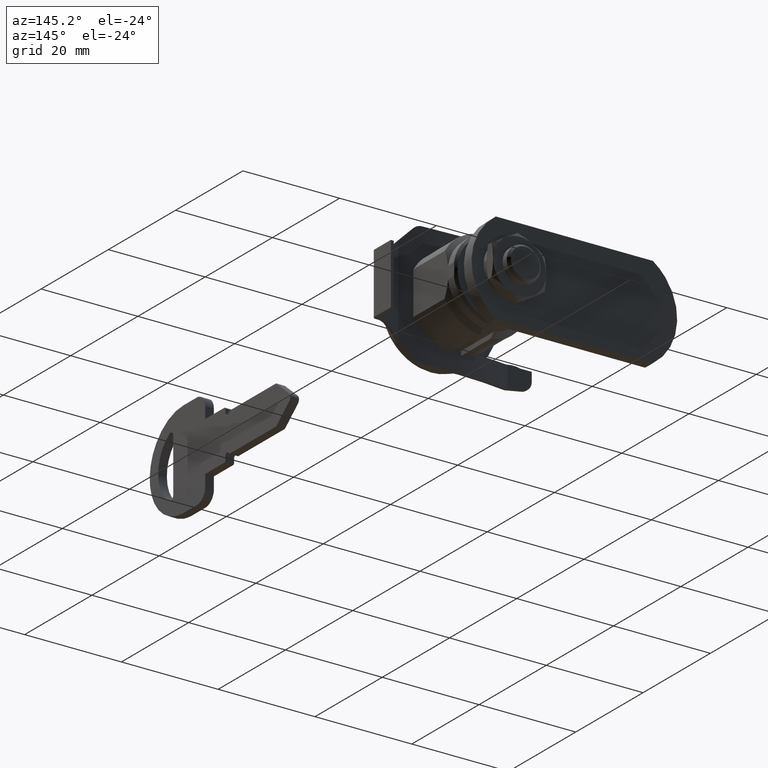
[diagram: clean part render]
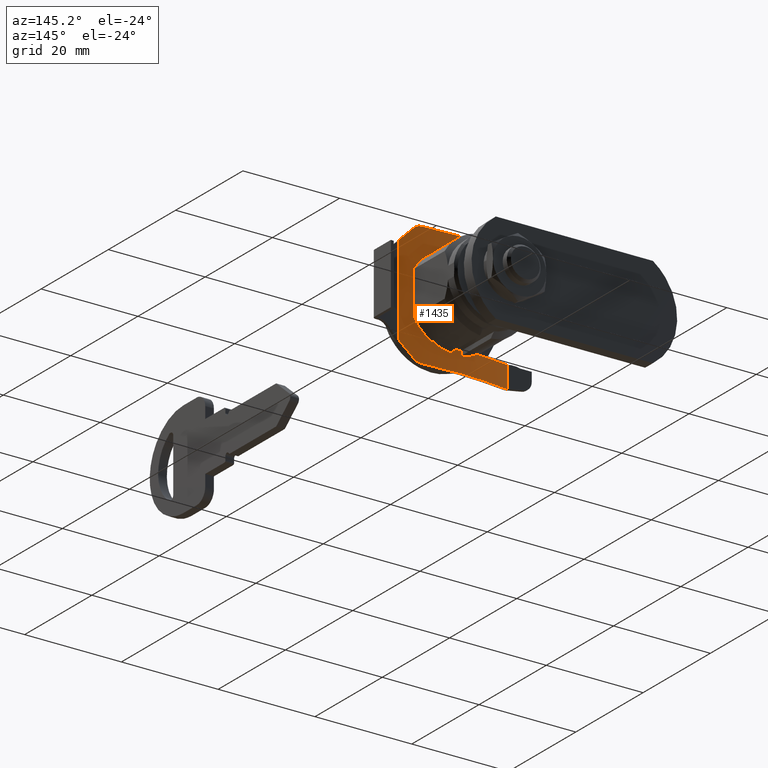
[diagram: same view with one face highlighted and labeled with its STEP entity id]
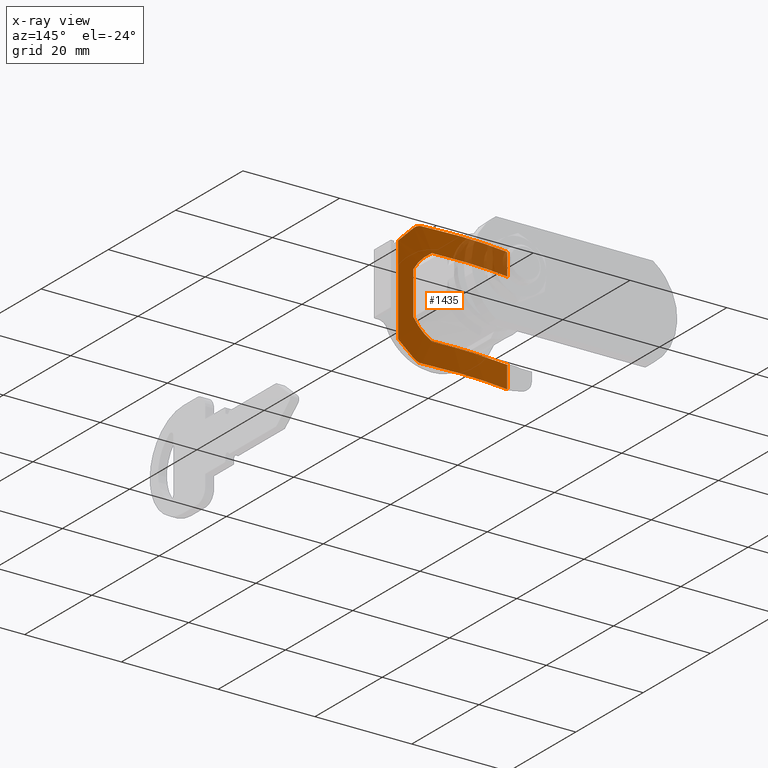
[diagram: x-ray of the same camera — body ghosted, the highlighted face saturated]
A machine part, auxiliary view. The second image highlights one B-rep face of the part: STEP entity #1435.
The next image is the same camera in x-ray: the body ghosted, the highlighted face saturated — about 18% of this face is hidden behind the body in this view.
In plain terms, the highlighted face is a freeform B-spline surface patch.
Its self-contained STEP definition (entity closure, byte-faithful):
#179=CARTESIAN_POINT('',(7.301255999999830,11.272893745618861,-12.701881436943300));
#180=VERTEX_POINT('',#179);
#186=CARTESIAN_POINT('',(7.344565675668210,11.0,-12.750000000000000));
#187=VERTEX_POINT('',#186);
#188=CARTESIAN_POINT('',(7.301255999999830,11.272893745618861,-12.701881436943300));
#189=CARTESIAN_POINT('',(7.323176158985340,11.136488980673015,-12.725933293714112));
#190=CARTESIAN_POINT('',(7.344565675668210,11.0,-12.750000000000000));
#198=(BOUNDED_CURVE()B_SPLINE_CURVE(2,(#188,#189,#190),.UNSPECIFIED.,.F.,.U.)CURVE()GEOMETRIC_REPRESENTATION_ITEM()QUASI_UNIFORM_CURVE()RATIONAL_B_SPLINE_CURVE((1.0,0.999998109511594,1.0))REPRESENTATION_ITEM(''));
#199=EDGE_CURVE('',#180,#187,#198,.T.);
#229=CARTESIAN_POINT('',(7.301255999999830,11.272893745618861,12.701881436943181));
#230=VERTEX_POINT('',#229);
#259=CARTESIAN_POINT('',(7.344565675668210,11.0,12.750000000000000));
#260=VERTEX_POINT('',#259);
#266=CARTESIAN_POINT('',(7.344565675668210,11.0,12.750000000000000));
#267=CARTESIAN_POINT('',(7.323176158985312,11.136488980673247,12.725933293714071));
#268=CARTESIAN_POINT('',(7.301255999999830,11.272893745618861,12.701881436943181));
#276=(BOUNDED_CURVE()B_SPLINE_CURVE(2,(#266,#267,#268),.UNSPECIFIED.,.F.,.U.)CURVE()GEOMETRIC_REPRESENTATION_ITEM()QUASI_UNIFORM_CURVE()RATIONAL_B_SPLINE_CURVE((1.0,0.999998109481175,1.0))REPRESENTATION_ITEM(''));
#277=EDGE_CURVE('',#260,#230,#276,.T.);
#296=CARTESIAN_POINT('',(8.039140463936290,-4.796873982084749,8.199999999999900));
#297=VERTEX_POINT('',#296);
#305=CARTESIAN_POINT('',(7.702949576500930,-8.400000000000000,4.437341546466749));
#306=VERTEX_POINT('',#305);
#307=CARTESIAN_POINT('',(8.039140463936290,-4.796873982084749,8.199999999999900));
#308=CARTESIAN_POINT('',(8.013255283921774,-5.179397853697526,7.976229413747991));
#309=CARTESIAN_POINT('',(7.985640444689947,-5.541703582096543,7.728544026565338));
#310=CARTESIAN_POINT('',(7.928630019843143,-6.227656611083003,7.187291875025985));
#311=CARTESIAN_POINT('',(7.899228909398044,-6.551298576525056,6.893719313692565));
#312=CARTESIAN_POINT('',(7.862386676940164,-6.931351056121496,6.497570890357855));
#313=CARTESIAN_POINT('',(7.855013836556886,-7.006130965653299,6.416875396990306));
#314=CARTESIAN_POINT('',(7.840286035518671,-7.153198264444018,6.252512739526453));
#315=CARTESIAN_POINT('',(7.832919993656250,-7.225592326919891,6.168715899497830));
#316=CARTESIAN_POINT('',(7.810975748177276,-7.438144185965483,5.913795089706082));
#317=CARTESIAN_POINT('',(7.796579147326940,-7.573427554383074,5.739488402230764));
#318=CARTESIAN_POINT('',(7.754391098766741,-7.960288604921142,5.203646172606618));
#319=CARTESIAN_POINT('',(7.727599121490428,-8.192971240079897,4.829252235585019));
#320=CARTESIAN_POINT('',(7.702949576500930,-8.400000000000000,4.437341546466749));
#321=B_SPLINE_CURVE_WITH_KNOTS('',3,(#307,#308,#309,#310,#311,#312,#313,#314,#315,#316,#317,#318,#319,#320),.UNSPECIFIED.,.F.,.U.,(4,2,2,2,2,2,4),(0.0,0.250000000000000,0.500000000000000,0.562500000000000,0.625000000000000,0.750000000000000,1.0),.UNSPECIFIED.);
#322=EDGE_CURVE('',#297,#306,#321,.T.);
#371=CARTESIAN_POINT('',(7.344565658611550,11.000000108840499,8.199999999999871));
#372=VERTEX_POINT('',#371);
#378=CARTESIAN_POINT('',(8.039140463936290,-4.796873982084749,8.199999999999900));
#379=CARTESIAN_POINT('',(8.576254774396885,3.140449436984798,8.199999999999871));
#380=CARTESIAN_POINT('',(7.344565658611550,11.000000108840499,8.199999999999871));
#388=(BOUNDED_CURVE()B_SPLINE_CURVE(2,(#378,#379,#380),.UNSPECIFIED.,.F.,.U.)CURVE()GEOMETRIC_REPRESENTATION_ITEM()QUASI_UNIFORM_CURVE()RATIONAL_B_SPLINE_CURVE((1.0,0.993789503322832,1.0))REPRESENTATION_ITEM(''));
#389=EDGE_CURVE('',#297,#372,#388,.T.);
#440=CARTESIAN_POINT('',(7.301255999999830,11.272893745618861,8.141587308521260));
#441=VERTEX_POINT('',#440);
#455=CARTESIAN_POINT('',(7.344565658611550,11.000000108840499,8.199999999999871));
#456=CARTESIAN_POINT('',(7.330370039421359,11.090583996377250,8.178572088309840));
#457=CARTESIAN_POINT('',(7.315935024583466,11.181549111700470,8.159102717105771));
#458=CARTESIAN_POINT('',(7.301255999999830,11.272893745618861,8.141587308521260));
#459=QUASI_UNIFORM_CURVE('',3,(#455,#456,#457,#458),.UNSPECIFIED.,.F.,.U.);
#460=EDGE_CURVE('',#372,#441,#459,.T.);
#491=CARTESIAN_POINT('',(7.344565675668309,11.0,-8.200000000000221));
#492=VERTEX_POINT('',#491);
#498=CARTESIAN_POINT('',(7.301255999999830,11.272893745618861,-8.141588308521460));
#499=VERTEX_POINT('',#498);
#500=CARTESIAN_POINT('',(7.301255999999830,11.272893745618861,-8.141588308521460));
#501=CARTESIAN_POINT('',(7.315935018216027,11.181549151323850,-8.159103709508038));
#502=CARTESIAN_POINT('',(7.330370026900894,11.090584075276960,-8.178573071423347));
#503=CARTESIAN_POINT('',(7.344565675668309,11.0,-8.200000000000221));
#504=QUASI_UNIFORM_CURVE('',3,(#500,#501,#502,#503),.UNSPECIFIED.,.F.,.U.);
#505=EDGE_CURVE('',#499,#492,#504,.T.);
#565=CARTESIAN_POINT('',(8.039140463936219,-4.796873982084200,-8.200000000000211));
#566=VERTEX_POINT('',#565);
#572=CARTESIAN_POINT('',(7.344565675668309,11.0,-8.200000000000221));
#573=CARTESIAN_POINT('',(8.576254770631190,3.140449381337320,-8.200000000000211));
#574=CARTESIAN_POINT('',(8.039140463936208,-4.796873982084180,-8.200000000000211));
#582=(BOUNDED_CURVE()B_SPLINE_CURVE(2,(#572,#573,#574),.UNSPECIFIED.,.F.,.U.)CURVE()GEOMETRIC_REPRESENTATION_ITEM()QUASI_UNIFORM_CURVE()RATIONAL_B_SPLINE_CURVE((1.0,0.993789503409106,1.0))REPRESENTATION_ITEM(''));
#583=EDGE_CURVE('',#492,#566,#582,.T.);
#603=CARTESIAN_POINT('',(7.702949576500930,-8.400000000000000,-4.437341546466755));
#604=VERTEX_POINT('',#603);
#612=CARTESIAN_POINT('',(7.702949576500930,-8.400000000000000,-4.437341546466755));
#613=CARTESIAN_POINT('',(7.727599746036079,-8.192965994592059,-4.829262165426425));
#614=CARTESIAN_POINT('',(7.754283698164585,-7.961164258051011,-5.201996526745510));
#615=CARTESIAN_POINT('',(7.810044117350993,-7.450062679325042,-5.910792694898833));
#616=CARTESIAN_POINT('',(7.839125939055289,-7.170756706521733,-6.246849361003409));
#617=CARTESIAN_POINT('',(7.875962939142347,-6.791425746651184,-6.643688075566392));
#618=CARTESIAN_POINT('',(7.883354471328707,-6.714042727227972,-6.721888919530215));
#619=CARTESIAN_POINT('',(7.898159614617551,-6.556201915031673,-6.875927343921032));
#620=CARTESIAN_POINT('',(7.905584434880217,-6.475619225519457,-6.951877071567860));
#621=CARTESIAN_POINT('',(7.927764826630832,-6.230146907077186,-7.175250950640629));
#622=CARTESIAN_POINT('',(7.942398006783501,-6.061869392534364,-7.317941177068883));
#623=CARTESIAN_POINT('',(7.985527508630429,-5.543317466428631,-7.727595090267617));
#624=CARTESIAN_POINT('',(8.013255718524491,-5.179391431260055,-7.976233170775251));
#625=CARTESIAN_POINT('',(8.039140463936230,-4.796873982084190,-8.200000000000232));
#626=B_SPLINE_CURVE_WITH_KNOTS('',3,(#612,#613,#614,#615,#616,#617,#618,#619,#620,#621,#622,#623,#624,#625),.UNSPECIFIED.,.F.,.U.,(4,2,2,2,2,2,4),(0.0,0.249999999999999,0.499999999999999,0.562499999999999,0.624999999999999,0.749999999999999,1.0),.UNSPECIFIED.);
#627=EDGE_CURVE('',#604,#566,#626,.T.);
#661=CARTESIAN_POINT('',(7.702949576500930,-8.400000000000000,-4.437341546466755));
#662=CARTESIAN_POINT('',(7.702949576500930,-8.400000000000000,4.437341546466749));
#663=QUASI_UNIFORM_CURVE('',1,(#661,#662),.UNSPECIFIED.,.F.,.U.);
#664=EDGE_CURVE('',#604,#306,#663,.T.);
#801=CARTESIAN_POINT('',(7.716454620868791,-8.285785304922289,-12.164213695077800));
#802=VERTEX_POINT('',#801);
#803=CARTESIAN_POINT('',(7.868179781815730,-6.871571875253689,-12.750000000000000));
#804=VERTEX_POINT('',#803);
#805=CARTESIAN_POINT('',(7.716454620868791,-8.285785304922289,-12.164213695077800));
#806=CARTESIAN_POINT('',(7.727428276862145,-8.192330453439759,-12.257668529021190));
#807=CARTESIAN_POINT('',(7.739101772864466,-8.091318640819370,-12.340336695870571));
#808=CARTESIAN_POINT('',(7.757461609653921,-7.928951737456185,-12.448877886015870));
#809=CARTESIAN_POINT('',(7.763724624434820,-7.873007668241627,-12.482462034585531));
#810=CARTESIAN_POINT('',(7.776519212119526,-7.757396324527613,-12.544328117660241));
#811=CARTESIAN_POINT('',(7.783073307234176,-7.697513782413822,-12.572664813440371));
#812=CARTESIAN_POINT('',(7.802693255234839,-7.516042482980576,-12.647842422437630));
#813=CARTESIAN_POINT('',(7.815838087316661,-7.391555082354557,-12.685625538908120));
#814=CARTESIAN_POINT('',(7.835564618860041,-7.199610648962312,-12.723992845371740));
#815=CARTESIAN_POINT('',(7.842154087613452,-7.134636145419853,-12.733720406596740));
#816=CARTESIAN_POINT('',(7.855278571841571,-7.003379522886156,-12.746741396829339));
#817=CARTESIAN_POINT('',(7.861766865188786,-6.937567704791070,-12.750000000000000));
#818=CARTESIAN_POINT('',(7.868179781815740,-6.871571875253689,-12.750000000000000));
#819=B_SPLINE_CURVE_WITH_KNOTS('',3,(#805,#806,#807,#808,#809,#810,#811,#812,#813,#814,#815,#816,#817,#818),.UNSPECIFIED.,.F.,.U.,(4,2,2,2,2,2,4),(0.0,0.250000000000002,0.375000000000003,0.500000000000003,0.750000000000002,0.875000000000001,1.0),.UNSPECIFIED.);
#820=EDGE_CURVE('',#802,#804,#819,.T.);
#870=CARTESIAN_POINT('',(7.868179781815730,-6.871571875253689,12.750000000000000));
#871=VERTEX_POINT('',#870);
#872=CARTESIAN_POINT('',(7.716454620868801,-8.285785304922239,12.164213695077720));
#873=VERTEX_POINT('',#872);
#874=CARTESIAN_POINT('',(7.868179781815730,-6.871571875253689,12.750000000000000));
#875=CARTESIAN_POINT('',(7.855353522289426,-7.003567921131173,12.750000000000000));
#876=CARTESIAN_POINT('',(7.842371181426592,-7.133333848835184,12.737061217926790));
#877=CARTESIAN_POINT('',(7.822702942289331,-7.324781047517838,12.699059863068889));
#878=CARTESIAN_POINT('',(7.816114738006598,-7.388059250142784,12.683270808413550));
#879=CARTESIAN_POINT('',(7.802885139136938,-7.513517983855278,12.645310112022599));
#880=CARTESIAN_POINT('',(7.796221529673129,-7.575896553954875,12.623022772206641));
#881=CARTESIAN_POINT('',(7.776599310583295,-7.757403871785795,12.547902084889079));
#882=CARTESIAN_POINT('',(7.763875788352156,-7.872196240980962,12.486605397749070));
#883=CARTESIAN_POINT('',(7.745453585082318,-8.035160889708617,12.377981100207990));
#884=CARTESIAN_POINT('',(7.739414782913141,-8.088017343346522,12.338905034302201));
#885=CARTESIAN_POINT('',(7.727636625740456,-8.190156179874757,12.255222314637090));
#886=CARTESIAN_POINT('',(7.721941500305253,-8.239057441104867,12.210941550125460));
#887=CARTESIAN_POINT('',(7.716454620868801,-8.285785304922239,12.164213695077720));
#888=B_SPLINE_CURVE_WITH_KNOTS('',3,(#874,#875,#876,#877,#878,#879,#880,#881,#882,#883,#884,#885,#886,#887),.UNSPECIFIED.,.F.,.U.,(4,2,2,2,2,2,4),(0.0,0.250000000000001,0.375000000000001,0.500000000000002,0.750000000000001,0.875000000000000,1.0),.UNSPECIFIED.);
#889=EDGE_CURVE('',#871,#873,#888,.T.);
#1007=CARTESIAN_POINT('',(7.301255999999830,-11.272893745618839,-9.177105814979601));
#1008=VERTEX_POINT('',#1007);
#1009=CARTESIAN_POINT('',(7.716454620868785,-8.285785304922282,-12.164213695077800));
#1010=CARTESIAN_POINT('',(7.540561012587280,-9.783746517540301,-10.666252763586080));
#1011=CARTESIAN_POINT('',(7.301255999999830,-11.272893745618839,-9.177105814979601));
#1019=(BOUNDED_CURVE()B_SPLINE_CURVE(2,(#1009,#1010,#1011),.UNSPECIFIED.,.F.,.U.)CURVE()GEOMETRIC_REPRESENTATION_ITEM()QUASI_UNIFORM_CURVE()RATIONAL_B_SPLINE_CURVE((1.0,0.999774754556721,1.0))REPRESENTATION_ITEM(''));
#1020=EDGE_CURVE('',#802,#1008,#1019,.T.);
#1108=CARTESIAN_POINT('',(7.301255999999830,-11.272893745618839,9.177105814979491));
#1109=VERTEX_POINT('',#1108);
#1115=CARTESIAN_POINT('',(7.301255999999830,-11.272893745618839,9.177105814979491));
#1116=CARTESIAN_POINT('',(7.540561012587280,-9.783746517540237,10.666252763586039));
#1117=CARTESIAN_POINT('',(7.716454620868801,-8.285785304922239,12.164213695077720));
#1125=(BOUNDED_CURVE()B_SPLINE_CURVE(2,(#1115,#1116,#1117),.UNSPECIFIED.,.F.,.U.)CURVE()GEOMETRIC_REPRESENTATION_ITEM()QUASI_UNIFORM_CURVE()RATIONAL_B_SPLINE_CURVE((1.0,0.999774754556313,1.0))REPRESENTATION_ITEM(''));
#1126=EDGE_CURVE('',#1109,#873,#1125,.T.);
#1224=CARTESIAN_POINT('',(7.868179781815712,-6.871571875253702,12.750000000000000));
#1225=CARTESIAN_POINT('',(8.739710508903389,2.097419403955009,12.750000000000004));
#1226=CARTESIAN_POINT('',(7.344565675668199,10.999999999999980,12.750000000000000));
#1234=(BOUNDED_CURVE()B_SPLINE_CURVE(2,(#1224,#1225,#1226),.UNSPECIFIED.,.F.,.U.)CURVE()GEOMETRIC_REPRESENTATION_ITEM()QUASI_UNIFORM_CURVE()RATIONAL_B_SPLINE_CURVE((1.0,0.992052658849775,1.0))REPRESENTATION_ITEM(''));
#1235=EDGE_CURVE('',#871,#260,#1234,.T.);
#1259=CARTESIAN_POINT('',(7.868179781815712,-6.871571875253702,-12.750000000000000));
#1260=CARTESIAN_POINT('',(8.739710508903389,2.097419403955009,-12.750000000000004));
#1261=CARTESIAN_POINT('',(7.344565675668199,10.999999999999980,-12.750000000000000));
#1269=(BOUNDED_CURVE()B_SPLINE_CURVE(2,(#1259,#1260,#1261),.UNSPECIFIED.,.F.,.U.)CURVE()GEOMETRIC_REPRESENTATION_ITEM()QUASI_UNIFORM_CURVE()RATIONAL_B_SPLINE_CURVE((1.0,0.992052658849775,1.0))REPRESENTATION_ITEM(''));
#1270=EDGE_CURVE('',#804,#187,#1269,.T.);
#1320=CARTESIAN_POINT('',(7.301255999999830,-11.272893745618839,-9.177105814979601));
#1321=CARTESIAN_POINT('',(7.301255999999830,-11.272893745618839,9.177105814979491));
#1322=QUASI_UNIFORM_CURVE('',1,(#1320,#1321),.UNSPECIFIED.,.F.,.U.);
#1323=EDGE_CURVE('',#1008,#1109,#1322,.T.);
#1393=CARTESIAN_POINT('',(7.114148225094271,12.381193675825546,-13.387500000000006));
#1394=CARTESIAN_POINT('',(7.114148225094271,12.381193675825546,13.403437423706052));
#1395=CARTESIAN_POINT('',(9.305513289555297,-0.001454508129028,-13.387500000000005));
#1396=CARTESIAN_POINT('',(9.305513289555297,-0.001454508129028,13.403437423706057));
#1397=CARTESIAN_POINT('',(7.113648993095752,-12.384014332302691,-13.387499999999998));
#1398=CARTESIAN_POINT('',(7.113648993095752,-12.384014332302691,13.403437423706055));
#1406=(BOUNDED_SURFACE()B_SPLINE_SURFACE(1,2,((#1393,#1395,#1397),(#1394,#1396,#1398)),.UNSPECIFIED.,.F.,.F.,.U.)B_SPLINE_SURFACE_WITH_KNOTS((2,2),(3,3),(0.0,26.790937423706058),(0.743144937354326,25.700769833725690),.UNSPECIFIED.)GEOMETRIC_REPRESENTATION_ITEM()RATIONAL_B_SPLINE_SURFACE(((0.998984420245388,0.982385574084009,0.996325368938743),(0.998984420245388,0.982385574084009,0.996325368938743)))REPRESENTATION_ITEM('')SURFACE());
#1407=ORIENTED_EDGE('',*,*,#199,.F.);
#1408=CARTESIAN_POINT('',(7.301255999999830,11.272893745618861,-12.701881436943300));
#1409=CARTESIAN_POINT('',(7.301255999999830,11.272893745618861,-8.141588308521460));
#1410=QUASI_UNIFORM_CURVE('',1,(#1408,#1409),.UNSPECIFIED.,.F.,.U.);
#1411=EDGE_CURVE('',#180,#499,#1410,.T.);
#1412=ORIENTED_EDGE('',*,*,#1411,.T.);
#1413=ORIENTED_EDGE('',*,*,#505,.T.);
#1414=ORIENTED_EDGE('',*,*,#583,.T.);
#1415=ORIENTED_EDGE('',*,*,#627,.F.);
#1416=ORIENTED_EDGE('',*,*,#664,.T.);
#1417=ORIENTED_EDGE('',*,*,#322,.F.);
#1418=ORIENTED_EDGE('',*,*,#389,.T.);
#1419=ORIENTED_EDGE('',*,*,#460,.T.);
#1420=CARTESIAN_POINT('',(7.301255999999830,11.272893745618861,8.141587308521260));
#1421=CARTESIAN_POINT('',(7.301255999999830,11.272893745618861,12.701881436943181));
#1422=QUASI_UNIFORM_CURVE('',1,(#1420,#1421),.UNSPECIFIED.,.F.,.U.);
#1423=EDGE_CURVE('',#441,#230,#1422,.T.);
#1424=ORIENTED_EDGE('',*,*,#1423,.T.);
#1425=ORIENTED_EDGE('',*,*,#277,.F.);
#1426=ORIENTED_EDGE('',*,*,#1235,.F.);
#1427=ORIENTED_EDGE('',*,*,#889,.T.);
#1428=ORIENTED_EDGE('',*,*,#1126,.F.);
#1429=ORIENTED_EDGE('',*,*,#1323,.F.);
#1430=ORIENTED_EDGE('',*,*,#1020,.F.);
#1431=ORIENTED_EDGE('',*,*,#820,.T.);
#1432=ORIENTED_EDGE('',*,*,#1270,.T.);
#1433=EDGE_LOOP('',(#1407,#1412,#1413,#1414,#1415,#1416,#1417,#1418,#1419,#1424,#1425,#1426,#1427,#1428,#1429,#1430,#1431,#1432));
#1434=FACE_OUTER_BOUND('',#1433,.T.);
#1435=ADVANCED_FACE('',(#1434),#1406,.T.);